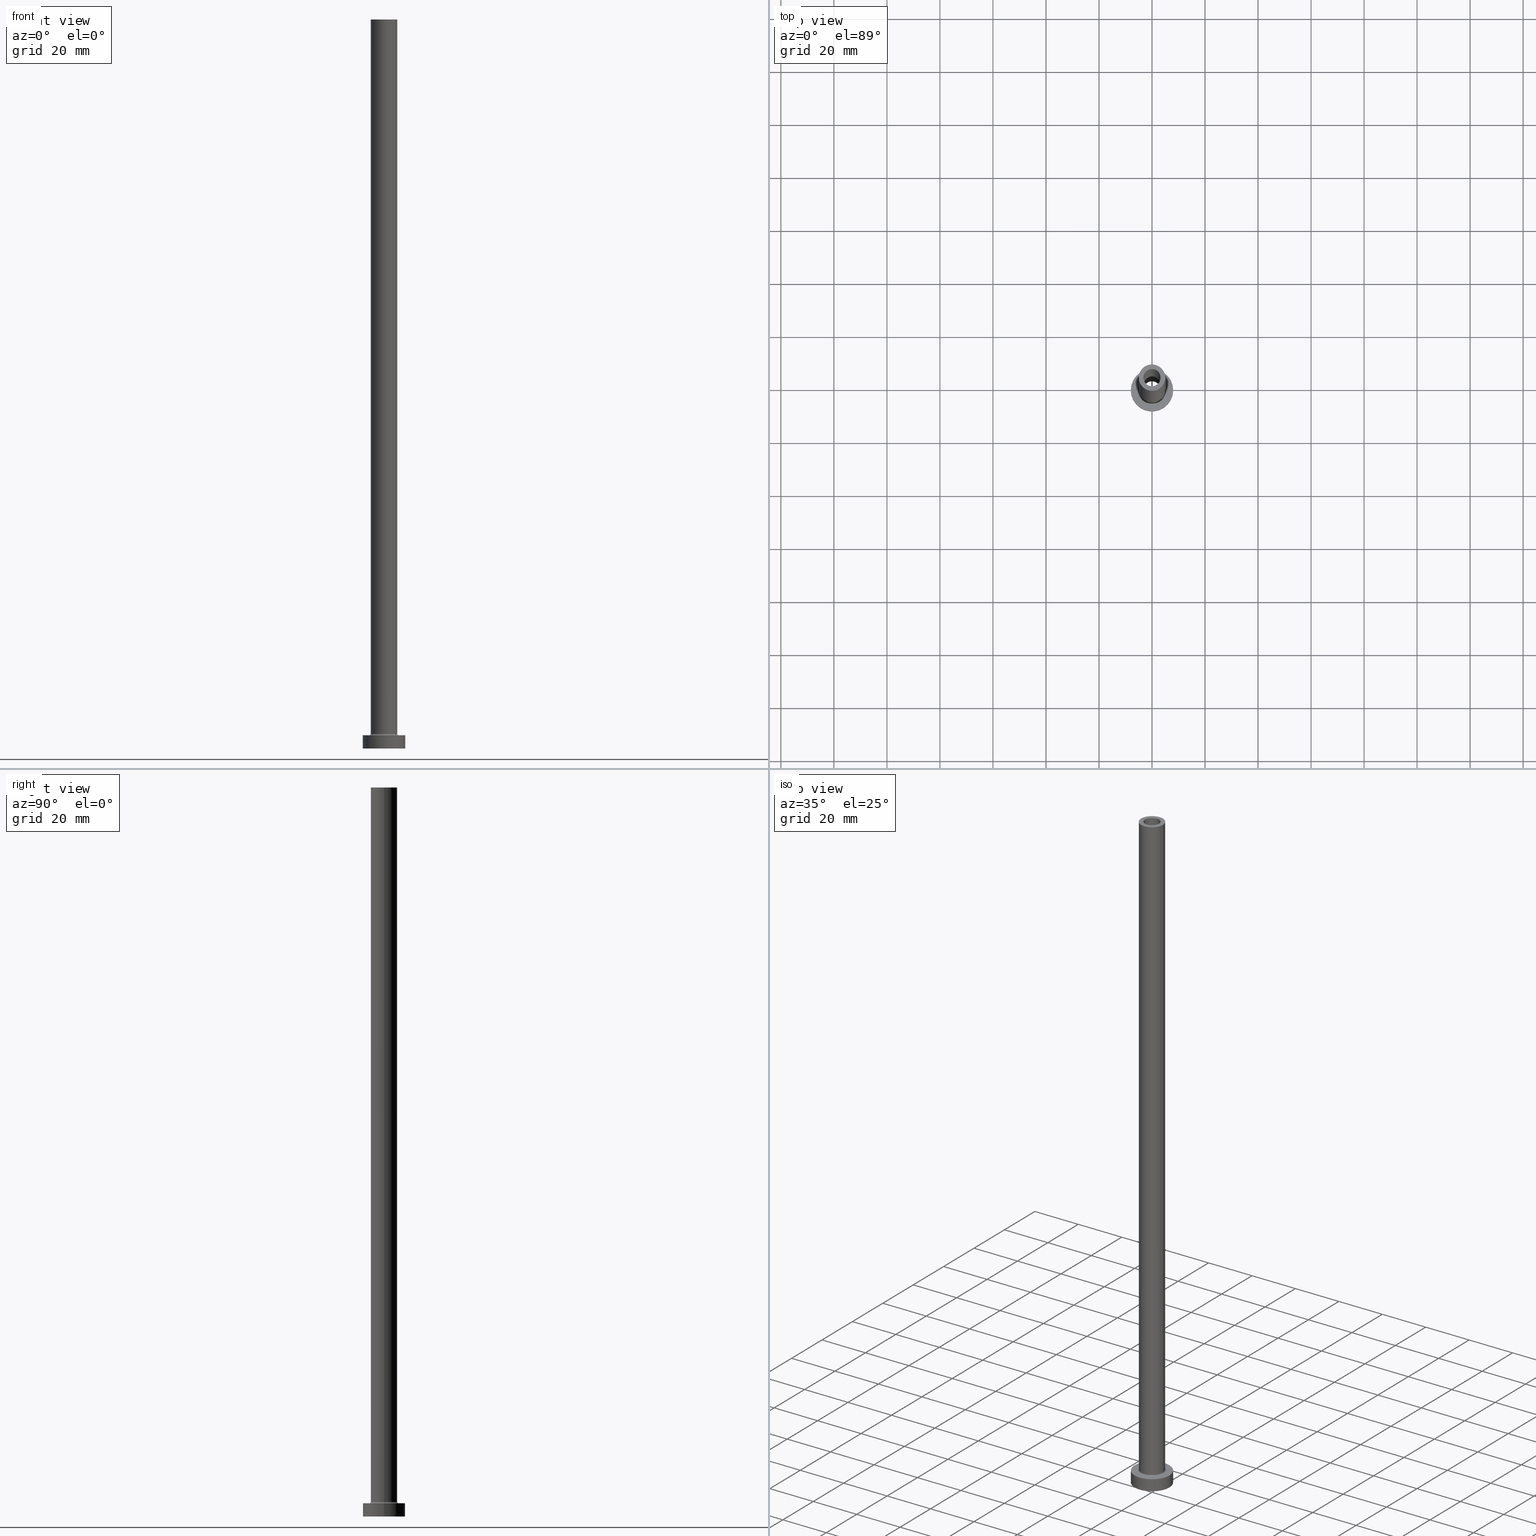
[diagram: canonical four-view strip — front | top / right | iso, engineering-drawing reading convention]
A machine part, canonical four-view strip (front | top / right | iso — engineering-drawing reading convention). The complete STEP part file that produces these views, byte-faithful:
ISO-10303-21;
HEADER;
FILE_DESCRIPTION (( 'STEP AP203' ),
    '1' );
FILE_NAME ('f0b0.STEP',
    '2023-02-13T14:01:54',
    ( '' ),
    ( '' ),
    'SwSTEP 2.0',
    'SolidWorks 2019',
    '' );
FILE_SCHEMA (( 'CONFIG_CONTROL_DESIGN' ));
ENDSEC;

DATA;
#1 = EDGE_CURVE ( 'NONE', #441, #51, #213, .T. ) ;
#2 = ADVANCED_FACE ( 'NONE', ( #30, #246 ), #245, .T. ) ;
#3 = CARTESIAN_POINT ( 'NONE',  ( 0.000000000000000000, 0.000000000000000000, 275.0000000000000000 ) ) ;
#4 = EDGE_CURVE ( 'NONE', #93, #163, #5, .T. ) ;
#5 = CIRCLE ( 'NONE', #270, 8.000000000000000000 ) ;
#6 = DIRECTION ( 'NONE',  ( 0.000000000000000000, 0.000000000000000000, 1.000000000000000000 ) ) ;
#7 = VECTOR ( 'NONE', #149, 1000.000000000000000 ) ;
#8 = CC_DESIGN_PERSON_AND_ORGANIZATION_ASSIGNMENT ( #165, #346, ( #154 ) ) ;
#9 = LINE ( 'NONE', #432, #456 ) ;
#10 = CARTESIAN_POINT ( 'NONE',  ( 5.500000000000000000, 0.000000000000000000, 5.500000000000005329 ) ) ;
#11 = EDGE_LOOP ( 'NONE', ( #380, #348, #15, #338 ) ) ;
#12 = EDGE_CURVE ( 'NONE', #19, #141, #64, .T. ) ;
#13 = DIRECTION ( 'NONE',  ( -0.000000000000000000, -0.000000000000000000, -1.000000000000000000 ) ) ;
#14 = CIRCLE ( 'NONE', #114, 3.399999999999999911 ) ;
#15 = ORIENTED_EDGE ( 'NONE', *, *, #352, .T. ) ;
#16 = CARTESIAN_POINT ( 'NONE',  ( 0.000000000000000000, 0.000000000000000000, 0.000000000000000000 ) ) ;
#17 = VERTEX_POINT ( 'NONE', #35 ) ;
#18 = DATE_TIME_ROLE ( 'classification_date' ) ;
#19 = VERTEX_POINT ( 'NONE', #100 ) ;
#20 = APPROVAL_DATE_TIME ( #375, #295 ) ;
#21 = AXIS2_PLACEMENT_3D ( 'NONE', #260, #264, #47 ) ;
#22 = ORIENTED_EDGE ( 'NONE', *, *, #162, .F. ) ;
#23 = DIRECTION ( 'NONE',  ( 0.000000000000000000, 0.000000000000000000, 1.000000000000000000 ) ) ;
#24 = DESIGN_CONTEXT ( 'detailed design', #146, 'design' ) ;
#25 = ORIENTED_EDGE ( 'NONE', *, *, #196, .F. ) ;
#26 = PERSON_AND_ORGANIZATION ( #99, #116 ) ;
#27 = LINE ( 'NONE', #215, #238 ) ;
#28 = DIRECTION ( 'NONE',  ( 1.000000000000000000, 0.000000000000000000, -0.000000000000000000 ) ) ;
#29 = VECTOR ( 'NONE', #142, 1000.000000000000000 ) ;
#30 = FACE_BOUND ( 'NONE', #42, .T. ) ;
#31 = DIRECTION ( 'NONE',  ( 0.000000000000000000, 0.000000000000000000, 1.000000000000000000 ) ) ;
#32 = CARTESIAN_POINT ( 'NONE',  ( -3.250000000000000444, 0.000000000000000000, 275.0000000000000000 ) ) ;
#33 = CALENDAR_DATE ( 2023, 13, 2 ) ;
#34 = LINE ( 'NONE', #174, #128 ) ;
#35 = CARTESIAN_POINT ( 'NONE',  ( 5.000000000000000000, 6.123233995736766282E-16, 5.500000000000005329 ) ) ;
#36 = FACE_BOUND ( 'NONE', #376, .T. ) ;
#37 = CIRCLE ( 'NONE', #73, 0.5000000000000004441 ) ;
#38 = DIRECTION ( 'NONE',  ( 0.000000000000000000, 0.000000000000000000, 1.000000000000000000 ) ) ;
#39 = DIRECTION ( 'NONE',  ( 1.000000000000000000, 0.000000000000000000, 0.000000000000000000 ) ) ;
#40 = DIRECTION ( 'NONE',  ( -1.000000000000000000, 0.000000000000000000, 0.000000000000000000 ) ) ;
#41 = PRODUCT_DEFINITION ( 'NEZN�M�', '', #154, #24 ) ;
#42 = EDGE_LOOP ( 'NONE', ( #340, #236 ) ) ;
#43 = DIRECTION ( 'NONE',  ( 0.000000000000000000, 0.000000000000000000, -1.000000000000000000 ) ) ;
#44 = CIRCLE ( 'NONE', #65, 3.399999999999999911 ) ;
#45 = DIRECTION ( 'NONE',  ( -0.000000000000000000, -0.000000000000000000, -1.000000000000000000 ) ) ;
#46 = EDGE_CURVE ( 'NONE', #394, #19, #27, .T. ) ;
#47 = DIRECTION ( 'NONE',  ( 1.000000000000000000, 0.000000000000000000, 0.000000000000000000 ) ) ;
#48 = ORIENTED_EDGE ( 'NONE', *, *, #254, .F. ) ;
#49 = PERSON_AND_ORGANIZATION ( #99, #116 ) ;
#50 = ADVANCED_BREP_SHAPE_REPRESENTATION ( 'f0b0', ( #137, #230 ), #159 ) ;
#51 = VERTEX_POINT ( 'NONE', #138 ) ;
#52 = PERSON_AND_ORGANIZATION ( #99, #116 ) ;
#53 = EDGE_CURVE ( 'NONE', #141, #19, #278, .T. ) ;
#54 = ORIENTED_EDGE ( 'NONE', *, *, #188, .T. ) ;
#55 = ORIENTED_EDGE ( 'NONE', *, *, #342, .F. ) ;
#56 = APPROVAL_ROLE ( '' ) ;
#57 = AXIS2_PLACEMENT_3D ( 'NONE', #252, #415, #67 ) ;
#58 = AXIS2_PLACEMENT_3D ( 'NONE', #332, #6, #39 ) ;
#59 = ORIENTED_EDGE ( 'NONE', *, *, #46, .T. ) ;
#60 = DIRECTION ( 'NONE',  ( 0.000000000000000000, 0.000000000000000000, 1.000000000000000000 ) ) ;
#61 = EDGE_LOOP ( 'NONE', ( #22, #202, #169, #300 ) ) ;
#62 = LINE ( 'NONE', #32, #158 ) ;
#63 = CARTESIAN_POINT ( 'NONE',  ( 0.000000000000000000, 0.000000000000000000, 0.000000000000000000 ) ) ;
#64 = CIRCLE ( 'NONE', #199, 3.250000000000000444 ) ;
#65 = AXIS2_PLACEMENT_3D ( 'NONE', #72, #144, #392 ) ;
#66 = AXIS2_PLACEMENT_3D ( 'NONE', #323, #450, #326 ) ;
#67 = DIRECTION ( 'NONE',  ( 1.000000000000000000, 0.000000000000000000, 0.000000000000000000 ) ) ;
#68 = CARTESIAN_POINT ( 'NONE',  ( 0.000000000000000000, 0.000000000000000000, 239.6166522241370842 ) ) ;
#69 = CARTESIAN_POINT ( 'NONE',  ( 5.000000000000000000, 6.123233995736766282E-16, 275.0000000000000000 ) ) ;
#70 = CARTESIAN_POINT ( 'NONE',  ( -3.250000000000000444, 0.000000000000000000, 230.0000000000000284 ) ) ;
#71 = ORIENTED_EDGE ( 'NONE', *, *, #240, .F. ) ;
#72 = CARTESIAN_POINT ( 'NONE',  ( 0.000000000000000000, 0.000000000000000000, 0.000000000000000000 ) ) ;
#73 = AXIS2_PLACEMENT_3D ( 'NONE', #139, #359, #461 ) ;
#74 = DIRECTION ( 'NONE',  ( 0.000000000000000000, 0.000000000000000000, 1.000000000000000000 ) ) ;
#75 = EDGE_CURVE ( 'NONE', #109, #141, #62, .T. ) ;
#76 = DIRECTION ( 'NONE',  ( 0.000000000000000000, -1.000000000000000000, 0.000000000000000000 ) ) ;
#77 = DIRECTION ( 'NONE',  ( 1.000000000000000000, 0.000000000000000000, 0.000000000000000000 ) ) ;
#78 = ORIENTED_EDGE ( 'NONE', *, *, #75, .T. ) ;
#79 = CARTESIAN_POINT ( 'NONE',  ( -3.399999999999999911, 0.000000000000000000, 0.000000000000000000 ) ) ;
#80 = AXIS2_PLACEMENT_3D ( 'NONE', #189, #153, #398 ) ;
#81 = CC_DESIGN_PERSON_AND_ORGANIZATION_ASSIGNMENT ( #308, #442, ( #154 ) ) ;
#82 = DIRECTION ( 'NONE',  ( -1.000000000000000000, 0.000000000000000000, 0.000000000000000000 ) ) ;
#83 = VERTEX_POINT ( 'NONE', #69 ) ;
#84 = DIRECTION ( 'NONE',  ( 1.000000000000000000, 0.000000000000000000, 0.000000000000000000 ) ) ;
#85 = ADVANCED_FACE ( 'NONE', ( #453 ), #280, .T. ) ;
#86 = PRODUCT ( 'f0b0', 'f0b0', '', ( #235 ) ) ;
#87 = ADVANCED_FACE ( 'NONE', ( #107 ), #284, .F. ) ;
#88 = VERTEX_POINT ( 'NONE', #209 ) ;
#89 = COORDINATED_UNIVERSAL_TIME_OFFSET ( 1, 0, .AHEAD. ) ;
#90 = AXIS2_PLACEMENT_3D ( 'NONE', #385, #38, #220 ) ;
#91 = CC_DESIGN_APPROVAL ( #295, ( #154 ) ) ;
#92 = CC_DESIGN_PERSON_AND_ORGANIZATION_ASSIGNMENT ( #301, #444, ( #41 ) ) ;
#93 = VERTEX_POINT ( 'NONE', #353 ) ;
#94 = VERTEX_POINT ( 'NONE', #350 ) ;
#95 = DATE_AND_TIME ( #127, #440 ) ;
#96 = ORIENTED_EDGE ( 'NONE', *, *, #140, .F. ) ;
#97 = CC_DESIGN_PERSON_AND_ORGANIZATION_ASSIGNMENT ( #49, #341, ( #86 ) ) ;
#98 = CIRCLE ( 'NONE', #58, 5.000000000000000000 ) ;
#99 = PERSON ( 'NEUR�EN�', 'NEUR�EN�', 'NEUR�EN�', ('NEUR�EN�'), ('NEUR�EN�'), ('NEUR�EN�') ) ;
#100 = CARTESIAN_POINT ( 'NONE',  ( 3.250000000000000444, 3.980102097228897245E-16, 230.0000000000000284 ) ) ;
#101 = ORIENTED_EDGE ( 'NONE', *, *, #140, .T. ) ;
#102 = CARTESIAN_POINT ( 'NONE',  ( 0.000000000000000000, 0.000000000000000000, 230.0000000000000284 ) ) ;
#103 = CARTESIAN_POINT ( 'NONE',  ( 0.000000000000000000, 0.000000000000000000, 5.000000000000000000 ) ) ;
#104 = CYLINDRICAL_SURFACE ( 'NONE', #315, 3.399999999999999911 ) ;
#105 = CLOSED_SHELL ( 'NONE', ( #373, #87, #416, #302, #355, #404, #2, #279, #85, #184, #364, #224, #211, #228 ) ) ;
#106 = AXIS2_PLACEMENT_3D ( 'NONE', #255, #186, #281 ) ;
#107 = FACE_OUTER_BOUND ( 'NONE', #164, .T. ) ;
#108 = PLANE ( 'NONE',  #368 ) ;
#109 = VERTEX_POINT ( 'NONE', #173 ) ;
#110 = LINE ( 'NONE', #223, #214 ) ;
#111 = CARTESIAN_POINT ( 'NONE',  ( -5.000000000000000000, 0.000000000000000000, 275.0000000000000000 ) ) ;
#112 = PRODUCT_DEFINITION_SHAPE ( 'NONE', 'NONE',  #41 ) ;
#113 = PRODUCT_RELATED_PRODUCT_CATEGORY ( 'detail', '', ( #86 ) ) ;
#114 = AXIS2_PLACEMENT_3D ( 'NONE', #390, #181, #232 ) ;
#115 = FACE_BOUND ( 'NONE', #204, .T. ) ;
#116 = ORGANIZATION ( 'NEUR�EN�', 'NEUR�EN�', '' ) ;
#117 = FACE_OUTER_BOUND ( 'NONE', #272, .T. ) ;
#118 = CARTESIAN_POINT ( 'NONE',  ( 3.250000000000000444, 3.980102097228897245E-16, 275.0000000000000000 ) ) ;
#119 = CARTESIAN_POINT ( 'NONE',  ( 0.000000000000000000, 0.000000000000000000, 275.0000000000000000 ) ) ;
#120 = TOROIDAL_SURFACE ( 'NONE', #434, 5.500000000000000000, 0.5000000000000000000 ) ;
#121 = VERTEX_POINT ( 'NONE', #393 ) ;
#122 = LINE ( 'NONE', #157, #257 ) ;
#123 = EDGE_LOOP ( 'NONE', ( #71, #261, #126, #130 ) ) ;
#124 = PERSON_AND_ORGANIZATION ( #99, #116 ) ;
#125 = EDGE_CURVE ( 'NONE', #274, #413, #44, .T. ) ;
#126 = ORIENTED_EDGE ( 'NONE', *, *, #196, .T. ) ;
#127 = CALENDAR_DATE ( 2023, 13, 2 ) ;
#128 = VECTOR ( 'NONE', #314, 1000.000000000000000 ) ;
#129 = APPROVAL_PERSON_ORGANIZATION ( #358, #347, #387 ) ;
#130 = ORIENTED_EDGE ( 'NONE', *, *, #389, .T. ) ;
#131 = SECURITY_CLASSIFICATION_LEVEL ( 'unclassified' ) ;
#132 = EDGE_LOOP ( 'NONE', ( #409, #96, #191, #371 ) ) ;
#133 = COORDINATED_UNIVERSAL_TIME_OFFSET ( 1, 0, .AHEAD. ) ;
#134 = EDGE_CURVE ( 'NONE', #441, #274, #110, .T. ) ;
#135 = EDGE_LOOP ( 'NONE', ( #190, #241 ) ) ;
#136 = DIRECTION ( 'NONE',  ( 1.000000000000000000, 0.000000000000000000, 0.000000000000000000 ) ) ;
#137 = MANIFOLD_SOLID_BREP ( 'Odebrat vysunut�m4', #105 ) ;
#138 = CARTESIAN_POINT ( 'NONE',  ( 3.399999999999999911, 4.163799117101000559E-16, 230.0000000000000284 ) ) ;
#139 = CARTESIAN_POINT ( 'NONE',  ( -5.500000000000000000, 6.735557395310442023E-16, 5.500000000000005329 ) ) ;
#140 = EDGE_CURVE ( 'NONE', #17, #208, #414, .T. ) ;
#141 = VERTEX_POINT ( 'NONE', #70 ) ;
#142 = DIRECTION ( 'NONE',  ( 0.000000000000000000, 0.000000000000000000, -1.000000000000000000 ) ) ;
#143 = CARTESIAN_POINT ( 'NONE',  ( 0.000000000000000000, 0.000000000000000000, 275.0000000000000000 ) ) ;
#144 = DIRECTION ( 'NONE',  ( -0.000000000000000000, -0.000000000000000000, -1.000000000000000000 ) ) ;
#145 = AXIS2_PLACEMENT_3D ( 'NONE', #422, #419, #28 ) ;
#146 = APPLICATION_CONTEXT ( 'configuration controlled 3d designs of mechanical parts and assemblies' ) ;
#147 = APPROVAL_PERSON_ORGANIZATION ( #26, #420, #56 ) ;
#148 = DIRECTION ( 'NONE',  ( 1.000000000000000000, 0.000000000000000000, -0.000000000000000000 ) ) ;
#149 = DIRECTION ( 'NONE',  ( -0.000000000000000000, -0.000000000000000000, -1.000000000000000000 ) ) ;
#150 = EDGE_CURVE ( 'NONE', #51, #413, #454, .T. ) ;
#151 = CARTESIAN_POINT ( 'NONE',  ( 0.000000000000000000, 0.000000000000000000, 5.500000000000005329 ) ) ;
#152 = CIRCLE ( 'NONE', #21, 5.500000000000000000 ) ;
#153 = DIRECTION ( 'NONE',  ( 0.000000000000000000, 0.000000000000000000, 1.000000000000000000 ) ) ;
#154 = PRODUCT_DEFINITION_FORMATION_WITH_SPECIFIED_SOURCE ( 'LIBOVOLN�', '', #86, .NOT_KNOWN. ) ;
#155 = DIRECTION ( 'NONE',  ( -1.000000000000000000, 0.000000000000000000, 0.000000000000000000 ) ) ;
#156 = CARTESIAN_POINT ( 'NONE',  ( -5.500000000000000000, 6.735557395310442023E-16, 5.000000000000002665 ) ) ;
#157 = CARTESIAN_POINT ( 'NONE',  ( -8.000000000000000000, 0.000000000000000000, 5.000000000000000000 ) ) ;
#158 = VECTOR ( 'NONE', #319, 1000.000000000000000 ) ;
#159 =( GEOMETRIC_REPRESENTATION_CONTEXT ( 3 ) GLOBAL_UNCERTAINTY_ASSIGNED_CONTEXT ( ( #275 ) ) GLOBAL_UNIT_ASSIGNED_CONTEXT ( ( #344, #446, #438 ) ) REPRESENTATION_CONTEXT ( 'NONE', 'WORKASPACE' ) );
#160 = EDGE_LOOP ( 'NONE', ( #311, #374, #78, #288 ) ) ;
#161 = CARTESIAN_POINT ( 'NONE',  ( -3.399999999999999911, 0.000000000000000000, 230.0000000000000284 ) ) ;
#162 = EDGE_CURVE ( 'NONE', #163, #93, #396, .T. ) ;
#163 = VERTEX_POINT ( 'NONE', #253 ) ;
#164 = EDGE_LOOP ( 'NONE', ( #320, #309, #276, #445 ) ) ;
#165 = PERSON_AND_ORGANIZATION ( #99, #116 ) ;
#166 = CIRCLE ( 'NONE', #206, 8.000000000000000000 ) ;
#167 = CIRCLE ( 'NONE', #356, 3.250000000000000444 ) ;
#168 = CC_DESIGN_DATE_AND_TIME_ASSIGNMENT ( #95, #312, ( #41 ) ) ;
#169 = ORIENTED_EDGE ( 'NONE', *, *, #318, .T. ) ;
#170 = APPLICATION_PROTOCOL_DEFINITION ( 'international standard', 'config_control_design', 1994, #146 ) ;
#171 = ORIENTED_EDGE ( 'NONE', *, *, #259, .F. ) ;
#172 = APPROVAL_DATE_TIME ( #203, #420 ) ;
#173 = CARTESIAN_POINT ( 'NONE',  ( -3.250000000000000444, 0.000000000000000000, 275.0000000000000000 ) ) ;
#174 = CARTESIAN_POINT ( 'NONE',  ( 5.000000000000000000, 6.123233995736766282E-16, 275.0000000000000000 ) ) ;
#175 = AXIS2_PLACEMENT_3D ( 'NONE', #366, #45, #40 ) ;
#176 = ORIENTED_EDGE ( 'NONE', *, *, #389, .F. ) ;
#177 = COORDINATED_UNIVERSAL_TIME_OFFSET ( 1, 0, .AHEAD. ) ;
#178 = DIRECTION ( 'NONE',  ( 1.000000000000000000, 0.000000000000000000, 0.000000000000000000 ) ) ;
#179 = EDGE_CURVE ( 'NONE', #208, #402, #37, .T. ) ;
#180 = DIRECTION ( 'NONE',  ( 0.000000000000000000, 0.000000000000000000, 1.000000000000000000 ) ) ;
#181 = DIRECTION ( 'NONE',  ( -0.000000000000000000, -0.000000000000000000, -1.000000000000000000 ) ) ;
#182 = CARTESIAN_POINT ( 'NONE',  ( 0.000000000000000000, 0.000000000000000000, 230.0000000000000284 ) ) ;
#183 = DIRECTION ( 'NONE',  ( -1.000000000000000000, 0.000000000000000000, 0.000000000000000000 ) ) ;
#184 = ADVANCED_FACE ( 'NONE', ( #425, #317 ), #362, .T. ) ;
#185 = CIRCLE ( 'NONE', #424, 5.500000000000000000 ) ;
#186 = DIRECTION ( 'NONE',  ( 0.000000000000000000, 0.000000000000000000, 1.000000000000000000 ) ) ;
#187 = CYLINDRICAL_SURFACE ( 'NONE', #379, 8.000000000000000000 ) ;
#188 = EDGE_CURVE ( 'NONE', #88, #83, #306, .T. ) ;
#189 = CARTESIAN_POINT ( 'NONE',  ( 0.000000000000000000, 0.000000000000000000, 5.500000000000005329 ) ) ;
#190 = ORIENTED_EDGE ( 'NONE', *, *, #1, .F. ) ;
#191 = ORIENTED_EDGE ( 'NONE', *, *, #337, .T. ) ;
#192 = CIRCLE ( 'NONE', #447, 0.5000000000000004441 ) ;
#193 = SECURITY_CLASSIFICATION ( '', '', #131 ) ;
#194 = DIRECTION ( 'NONE',  ( 0.000000000000000000, 0.000000000000000000, 1.000000000000000000 ) ) ;
#195 = CYLINDRICAL_SURFACE ( 'NONE', #263, 3.250000000000000444 ) ;
#196 = EDGE_CURVE ( 'NONE', #88, #208, #361, .T. ) ;
#197 = EDGE_LOOP ( 'NONE', ( #54, #399 ) ) ;
#198 = COORDINATED_UNIVERSAL_TIME_OFFSET ( 1, 0, .AHEAD. ) ;
#199 = AXIS2_PLACEMENT_3D ( 'NONE', #316, #313, #448 ) ;
#200 = ORIENTED_EDGE ( 'NONE', *, *, #233, .T. ) ;
#201 = CALENDAR_DATE ( 2023, 13, 2 ) ;
#202 = ORIENTED_EDGE ( 'NONE', *, *, #383, .T. ) ;
#203 = DATE_AND_TIME ( #349, #330 ) ;
#204 = EDGE_LOOP ( 'NONE', ( #345, #171 ) ) ;
#205 = COORDINATED_UNIVERSAL_TIME_OFFSET ( 1, 0, .AHEAD. ) ;
#206 = AXIS2_PLACEMENT_3D ( 'NONE', #63, #452, #212 ) ;
#207 = LOCAL_TIME ( 15, 1, 54.00000000000000000, #205 ) ;
#208 = VERTEX_POINT ( 'NONE', #289 ) ;
#209 = CARTESIAN_POINT ( 'NONE',  ( -5.000000000000000000, 0.000000000000000000, 275.0000000000000000 ) ) ;
#210 = DIRECTION ( 'NONE',  ( -0.000000000000000000, -0.000000000000000000, -1.000000000000000000 ) ) ;
#211 = ADVANCED_FACE ( 'NONE', ( #36, #285 ), #108, .F. ) ;
#212 = DIRECTION ( 'NONE',  ( 1.000000000000000000, 0.000000000000000000, 0.000000000000000000 ) ) ;
#213 = CIRCLE ( 'NONE', #57, 3.399999999999999911 ) ;
#214 = VECTOR ( 'NONE', #321, 1000.000000000000000 ) ;
#215 = CARTESIAN_POINT ( 'NONE',  ( 3.250000000000000444, 3.980102097228897245E-16, 275.0000000000000000 ) ) ;
#216 = DATE_AND_TIME ( #33, #458 ) ;
#217 = FACE_OUTER_BOUND ( 'NONE', #218, .T. ) ;
#218 = EDGE_LOOP ( 'NONE', ( #436, #200, #343, #234 ) ) ;
#219 = DIRECTION ( 'NONE',  ( 0.000000000000000000, 0.000000000000000000, -1.000000000000000000 ) ) ;
#220 = DIRECTION ( 'NONE',  ( 1.000000000000000000, 0.000000000000000000, 0.000000000000000000 ) ) ;
#221 = CIRCLE ( 'NONE', #229, 5.000000000000000000 ) ;
#222 = CC_DESIGN_APPROVAL ( #420, ( #41 ) ) ;
#223 = CARTESIAN_POINT ( 'NONE',  ( -3.399999999999999911, 0.000000000000000000, 239.6166522241370842 ) ) ;
#224 = ADVANCED_FACE ( 'NONE', ( #217 ), #104, .F. ) ;
#225 = EDGE_CURVE ( 'NONE', #443, #121, #166, .T. ) ;
#226 = DIRECTION ( 'NONE',  ( 1.000000000000000000, 0.000000000000000000, 0.000000000000000000 ) ) ;
#227 = DIRECTION ( 'NONE',  ( 0.000000000000000000, 0.000000000000000000, 1.000000000000000000 ) ) ;
#228 = ADVANCED_FACE ( 'NONE', ( #428 ), #457, .F. ) ;
#229 = AXIS2_PLACEMENT_3D ( 'NONE', #354, #31, #178 ) ;
#230 = AXIS2_PLACEMENT_3D ( 'NONE', #16, #378, #136 ) ;
#231 = DIRECTION ( 'NONE',  ( -0.000000000000000000, -0.000000000000000000, -1.000000000000000000 ) ) ;
#232 = DIRECTION ( 'NONE',  ( 1.000000000000000000, 0.000000000000000000, 0.000000000000000000 ) ) ;
#233 = EDGE_CURVE ( 'NONE', #51, #441, #292, .T. ) ;
#234 = ORIENTED_EDGE ( 'NONE', *, *, #125, .T. ) ;
#235 = MECHANICAL_CONTEXT ( 'NONE', #335, 'mechanical' ) ;
#236 = ORIENTED_EDGE ( 'NONE', *, *, #303, .T. ) ;
#237 = CALENDAR_DATE ( 2023, 13, 2 ) ;
#238 = VECTOR ( 'NONE', #357, 1000.000000000000000 ) ;
#239 = ORIENTED_EDGE ( 'NONE', *, *, #342, .T. ) ;
#240 = EDGE_CURVE ( 'NONE', #83, #17, #34, .T. ) ;
#241 = ORIENTED_EDGE ( 'NONE', *, *, #233, .F. ) ;
#242 = ORIENTED_EDGE ( 'NONE', *, *, #269, .F. ) ;
#243 = APPROVAL_STATUS ( 'not_yet_approved' ) ;
#244 = AXIS2_PLACEMENT_3D ( 'NONE', #417, #322, #382 ) ;
#245 = PLANE ( 'NONE',  #324 ) ;
#246 = FACE_OUTER_BOUND ( 'NONE', #459, .T. ) ;
#247 = CARTESIAN_POINT ( 'NONE',  ( 3.399999999999999911, 4.163799117101000559E-16, 239.6166522241370842 ) ) ;
#248 = DIRECTION ( 'NONE',  ( 0.000000000000000000, 0.000000000000000000, 1.000000000000000000 ) ) ;
#249 = SHAPE_DEFINITION_REPRESENTATION ( #112, #50 ) ;
#250 = DIRECTION ( 'NONE',  ( 1.000000000000000000, 0.000000000000000000, 0.000000000000000000 ) ) ;
#251 = AXIS2_PLACEMENT_3D ( 'NONE', #119, #291, #226 ) ;
#252 = CARTESIAN_POINT ( 'NONE',  ( 0.000000000000000000, 0.000000000000000000, 230.0000000000000284 ) ) ;
#253 = CARTESIAN_POINT ( 'NONE',  ( 8.000000000000000000, 9.797174393178825657E-16, 5.000000000000000000 ) ) ;
#254 = EDGE_CURVE ( 'NONE', #83, #88, #221, .T. ) ;
#255 = CARTESIAN_POINT ( 'NONE',  ( 0.000000000000000000, 0.000000000000000000, 275.0000000000000000 ) ) ;
#256 = CARTESIAN_POINT ( 'NONE',  ( 0.000000000000000000, 0.000000000000000000, 275.0000000000000000 ) ) ;
#257 = VECTOR ( 'NONE', #231, 1000.000000000000000 ) ;
#258 = CARTESIAN_POINT ( 'NONE',  ( 0.000000000000000000, 0.000000000000000000, 0.000000000000000000 ) ) ;
#259 = EDGE_CURVE ( 'NONE', #413, #274, #14, .T. ) ;
#260 = CARTESIAN_POINT ( 'NONE',  ( 0.000000000000000000, 0.000000000000000000, 5.000000000000000000 ) ) ;
#261 = ORIENTED_EDGE ( 'NONE', *, *, #188, .F. ) ;
#262 = DIRECTION ( 'NONE',  ( -0.000000000000000000, -0.000000000000000000, -1.000000000000000000 ) ) ;
#263 = AXIS2_PLACEMENT_3D ( 'NONE', #429, #43, #155 ) ;
#264 = DIRECTION ( 'NONE',  ( -0.000000000000000000, -0.000000000000000000, -1.000000000000000000 ) ) ;
#265 = ORIENTED_EDGE ( 'NONE', *, *, #53, .T. ) ;
#266 = PLANE ( 'NONE',  #336 ) ;
#267 = ORIENTED_EDGE ( 'NONE', *, *, #179, .T. ) ;
#268 = APPROVAL_STATUS ( 'not_yet_approved' ) ;
#269 = EDGE_CURVE ( 'NONE', #94, #402, #185, .T. ) ;
#270 = AXIS2_PLACEMENT_3D ( 'NONE', #282, #248, #386 ) ;
#271 = AXIS2_PLACEMENT_3D ( 'NONE', #426, #74, #250 ) ;
#272 = EDGE_LOOP ( 'NONE', ( #48, #290, #101, #25 ) ) ;
#273 = DIRECTION ( 'NONE',  ( 1.000000000000000000, 0.000000000000000000, 0.000000000000000000 ) ) ;
#274 = VERTEX_POINT ( 'NONE', #79 ) ;
#275 = UNCERTAINTY_MEASURE_WITH_UNIT (LENGTH_MEASURE( 1.000000000000000082E-05 ), #344, 'distance_accuracy_value', 'NONE');
#276 = ORIENTED_EDGE ( 'NONE', *, *, #259, .T. ) ;
#277 = ORIENTED_EDGE ( 'NONE', *, *, #4, .T. ) ;
#278 = CIRCLE ( 'NONE', #372, 3.250000000000000444 ) ;
#279 = ADVANCED_FACE ( 'NONE', ( #115, #369 ), #266, .F. ) ;
#280 = CYLINDRICAL_SURFACE ( 'NONE', #363, 5.000000000000000000 ) ;
#281 = DIRECTION ( 'NONE',  ( 1.000000000000000000, 0.000000000000000000, 0.000000000000000000 ) ) ;
#282 = CARTESIAN_POINT ( 'NONE',  ( 0.000000000000000000, 0.000000000000000000, 5.000000000000000000 ) ) ;
#283 = DIRECTION ( 'NONE',  ( 0.000000000000000000, 0.000000000000000000, 1.000000000000000000 ) ) ;
#284 = CYLINDRICAL_SURFACE ( 'NONE', #244, 3.399999999999999911 ) ;
#285 = FACE_OUTER_BOUND ( 'NONE', #135, .T. ) ;
#286 = TOROIDAL_SURFACE ( 'NONE', #80, 5.500000000000000000, 0.5000000000000000000 ) ;
#287 = DIRECTION ( 'NONE',  ( 0.000000000000000000, 0.000000000000000000, -1.000000000000000000 ) ) ;
#288 = ORIENTED_EDGE ( 'NONE', *, *, #12, .F. ) ;
#289 = CARTESIAN_POINT ( 'NONE',  ( -5.000000000000000000, 0.000000000000000000, 5.500000000000005329 ) ) ;
#290 = ORIENTED_EDGE ( 'NONE', *, *, #240, .T. ) ;
#291 = DIRECTION ( 'NONE',  ( 0.000000000000000000, 0.000000000000000000, 1.000000000000000000 ) ) ;
#292 = CIRCLE ( 'NONE', #271, 3.399999999999999911 ) ;
#293 = CARTESIAN_POINT ( 'NONE',  ( 0.000000000000000000, 0.000000000000000000, 5.000000000000000000 ) ) ;
#294 = CYLINDRICAL_SURFACE ( 'NONE', #175, 8.000000000000000000 ) ;
#295 = APPROVAL ( #268, 'NEUR�EN�' ) ;
#296 = CARTESIAN_POINT ( 'NONE',  ( 3.399999999999999911, 4.163799117101000559E-16, 0.000000000000000000 ) ) ;
#297 = ORIENTED_EDGE ( 'NONE', *, *, #75, .F. ) ;
#298 = AXIS2_PLACEMENT_3D ( 'NONE', #333, #194, #77 ) ;
#299 = DIRECTION ( 'NONE',  ( -0.000000000000000000, -0.000000000000000000, -1.000000000000000000 ) ) ;
#300 = ORIENTED_EDGE ( 'NONE', *, *, #352, .F. ) ;
#301 = PERSON_AND_ORGANIZATION ( #99, #116 ) ;
#302 = ADVANCED_FACE ( 'NONE', ( #117 ), #397, .T. ) ;
#303 = EDGE_CURVE ( 'NONE', #402, #94, #152, .T. ) ;
#304 = ORIENTED_EDGE ( 'NONE', *, *, #53, .F. ) ;
#305 = PERSON_AND_ORGANIZATION_ROLE ( 'classification_officer' ) ;
#306 = CIRCLE ( 'NONE', #106, 5.000000000000000000 ) ;
#307 = EDGE_LOOP ( 'NONE', ( #176, #267, #242, #411 ) ) ;
#308 = PERSON_AND_ORGANIZATION ( #99, #116 ) ;
#309 = ORIENTED_EDGE ( 'NONE', *, *, #150, .T. ) ;
#310 = APPLICATION_PROTOCOL_DEFINITION ( 'international standard', 'config_control_design', 1994, #335 ) ;
#311 = ORIENTED_EDGE ( 'NONE', *, *, #46, .F. ) ;
#312 = DATE_TIME_ROLE ( 'creation_date' ) ;
#313 = DIRECTION ( 'NONE',  ( 0.000000000000000000, 0.000000000000000000, 1.000000000000000000 ) ) ;
#314 = DIRECTION ( 'NONE',  ( -0.000000000000000000, -0.000000000000000000, -1.000000000000000000 ) ) ;
#315 = AXIS2_PLACEMENT_3D ( 'NONE', #68, #219, #183 ) ;
#316 = CARTESIAN_POINT ( 'NONE',  ( 0.000000000000000000, 0.000000000000000000, 230.0000000000000284 ) ) ;
#317 = FACE_OUTER_BOUND ( 'NONE', #197, .T. ) ;
#318 = EDGE_CURVE ( 'NONE', #121, #443, #407, .T. ) ;
#319 = DIRECTION ( 'NONE',  ( 0.000000000000000000, 0.000000000000000000, -1.000000000000000000 ) ) ;
#320 = ORIENTED_EDGE ( 'NONE', *, *, #1, .T. ) ;
#321 = DIRECTION ( 'NONE',  ( 0.000000000000000000, 0.000000000000000000, -1.000000000000000000 ) ) ;
#322 = DIRECTION ( 'NONE',  ( 0.000000000000000000, 0.000000000000000000, -1.000000000000000000 ) ) ;
#323 = CARTESIAN_POINT ( 'NONE',  ( 0.000000000000000000, 0.000000000000000000, 5.500000000000005329 ) ) ;
#324 = AXIS2_PLACEMENT_3D ( 'NONE', #103, #180, #391 ) ;
#325 = ORIENTED_EDGE ( 'NONE', *, *, #430, .F. ) ;
#326 = DIRECTION ( 'NONE',  ( 1.000000000000000000, 0.000000000000000000, 0.000000000000000000 ) ) ;
#327 = CARTESIAN_POINT ( 'NONE',  ( 0.000000000000000000, 0.000000000000000000, 5.000000000000000000 ) ) ;
#328 = DIRECTION ( 'NONE',  ( -0.000000000000000000, -0.000000000000000000, -1.000000000000000000 ) ) ;
#329 = AXIS2_PLACEMENT_3D ( 'NONE', #256, #287, #395 ) ;
#330 = LOCAL_TIME ( 15, 1, 54.00000000000000000, #198 ) ;
#331 = APPROVAL_PERSON_ORGANIZATION ( #124, #295, #406 ) ;
#332 = CARTESIAN_POINT ( 'NONE',  ( 0.000000000000000000, 0.000000000000000000, 5.500000000000005329 ) ) ;
#333 = CARTESIAN_POINT ( 'NONE',  ( 0.000000000000000000, 0.000000000000000000, 0.000000000000000000 ) ) ;
#334 = CARTESIAN_POINT ( 'NONE',  ( 0.000000000000000000, 0.000000000000000000, 275.0000000000000000 ) ) ;
#335 = APPLICATION_CONTEXT ( 'configuration controlled 3d designs of mechanical parts and assemblies' ) ;
#336 = AXIS2_PLACEMENT_3D ( 'NONE', #258, #227, #431 ) ;
#337 = EDGE_CURVE ( 'NONE', #17, #94, #192, .T. ) ;
#338 = ORIENTED_EDGE ( 'NONE', *, *, #225, .T. ) ;
#339 = CARTESIAN_POINT ( 'NONE',  ( -8.000000000000000000, 0.000000000000000000, 0.000000000000000000 ) ) ;
#340 = ORIENTED_EDGE ( 'NONE', *, *, #269, .T. ) ;
#341 = PERSON_AND_ORGANIZATION_ROLE ( 'design_owner' ) ;
#342 = EDGE_CURVE ( 'NONE', #109, #394, #439, .T. ) ;
#343 = ORIENTED_EDGE ( 'NONE', *, *, #134, .T. ) ;
#344 =( LENGTH_UNIT ( ) NAMED_UNIT ( * ) SI_UNIT ( .MILLI., .METRE. ) );
#345 = ORIENTED_EDGE ( 'NONE', *, *, #125, .F. ) ;
#346 = PERSON_AND_ORGANIZATION_ROLE ( 'creator' ) ;
#347 = APPROVAL ( #351, 'NEUR�EN�' ) ;
#348 = ORIENTED_EDGE ( 'NONE', *, *, #4, .F. ) ;
#349 = CALENDAR_DATE ( 2023, 13, 2 ) ;
#350 = CARTESIAN_POINT ( 'NONE',  ( 5.500000000000000000, 0.000000000000000000, 5.000000000000002665 ) ) ;
#351 = APPROVAL_STATUS ( 'not_yet_approved' ) ;
#352 = EDGE_CURVE ( 'NONE', #93, #443, #122, .T. ) ;
#353 = CARTESIAN_POINT ( 'NONE',  ( -8.000000000000000000, 0.000000000000000000, 5.000000000000000000 ) ) ;
#354 = CARTESIAN_POINT ( 'NONE',  ( 0.000000000000000000, 0.000000000000000000, 275.0000000000000000 ) ) ;
#355 = ADVANCED_FACE ( 'NONE', ( #365 ), #294, .T. ) ;
#356 = AXIS2_PLACEMENT_3D ( 'NONE', #3, #23, #273 ) ;
#357 = DIRECTION ( 'NONE',  ( 0.000000000000000000, 0.000000000000000000, -1.000000000000000000 ) ) ;
#358 = PERSON_AND_ORGANIZATION ( #99, #116 ) ;
#359 = DIRECTION ( 'NONE',  ( 1.224646799147353207E-16, 1.000000000000000000, -0.000000000000000000 ) ) ;
#360 = DIRECTION ( 'NONE',  ( -1.000000000000000000, 0.000000000000000000, 0.000000000000000000 ) ) ;
#361 = LINE ( 'NONE', #111, #7 ) ;
#362 = PLANE ( 'NONE',  #145 ) ;
#363 = AXIS2_PLACEMENT_3D ( 'NONE', #143, #210, #360 ) ;
#364 = ADVANCED_FACE ( 'NONE', ( #435 ), #286, .F. ) ;
#365 = FACE_OUTER_BOUND ( 'NONE', #61, .T. ) ;
#366 = CARTESIAN_POINT ( 'NONE',  ( 0.000000000000000000, 0.000000000000000000, 5.000000000000000000 ) ) ;
#367 = FACE_OUTER_BOUND ( 'NONE', #460, .T. ) ;
#368 = AXIS2_PLACEMENT_3D ( 'NONE', #102, #283, #148 ) ;
#369 = FACE_OUTER_BOUND ( 'NONE', #451, .T. ) ;
#370 = DIRECTION ( 'NONE',  ( 0.000000000000000000, 0.000000000000000000, -1.000000000000000000 ) ) ;
#371 = ORIENTED_EDGE ( 'NONE', *, *, #303, .F. ) ;
#372 = AXIS2_PLACEMENT_3D ( 'NONE', #182, #423, #384 ) ;
#373 = ADVANCED_FACE ( 'NONE', ( #367 ), #195, .F. ) ;
#374 = ORIENTED_EDGE ( 'NONE', *, *, #430, .T. ) ;
#375 = DATE_AND_TIME ( #237, #207 ) ;
#376 = EDGE_LOOP ( 'NONE', ( #265, #400 ) ) ;
#377 = ORIENTED_EDGE ( 'NONE', *, *, #318, .F. ) ;
#378 = DIRECTION ( 'NONE',  ( 0.000000000000000000, 0.000000000000000000, 1.000000000000000000 ) ) ;
#379 = AXIS2_PLACEMENT_3D ( 'NONE', #327, #262, #401 ) ;
#380 = ORIENTED_EDGE ( 'NONE', *, *, #383, .F. ) ;
#381 = CC_DESIGN_SECURITY_CLASSIFICATION ( #193, ( #154 ) ) ;
#382 = DIRECTION ( 'NONE',  ( -1.000000000000000000, 0.000000000000000000, 0.000000000000000000 ) ) ;
#383 = EDGE_CURVE ( 'NONE', #163, #121, #9, .T. ) ;
#384 = DIRECTION ( 'NONE',  ( 1.000000000000000000, 0.000000000000000000, 0.000000000000000000 ) ) ;
#385 = CARTESIAN_POINT ( 'NONE',  ( 0.000000000000000000, 0.000000000000000000, 5.000000000000000000 ) ) ;
#386 = DIRECTION ( 'NONE',  ( 1.000000000000000000, 0.000000000000000000, 0.000000000000000000 ) ) ;
#387 = APPROVAL_ROLE ( '' ) ;
#388 = AXIS2_PLACEMENT_3D ( 'NONE', #334, #13, #82 ) ;
#389 = EDGE_CURVE ( 'NONE', #208, #17, #98, .T. ) ;
#390 = CARTESIAN_POINT ( 'NONE',  ( 0.000000000000000000, 0.000000000000000000, 0.000000000000000000 ) ) ;
#391 = DIRECTION ( 'NONE',  ( 1.000000000000000000, 0.000000000000000000, -0.000000000000000000 ) ) ;
#392 = DIRECTION ( 'NONE',  ( 1.000000000000000000, 0.000000000000000000, 0.000000000000000000 ) ) ;
#393 = CARTESIAN_POINT ( 'NONE',  ( 8.000000000000000000, 9.797174393178825657E-16, 0.000000000000000000 ) ) ;
#394 = VERTEX_POINT ( 'NONE', #118 ) ;
#395 = DIRECTION ( 'NONE',  ( -1.000000000000000000, 0.000000000000000000, 0.000000000000000000 ) ) ;
#396 = CIRCLE ( 'NONE', #90, 8.000000000000000000 ) ;
#397 = CYLINDRICAL_SURFACE ( 'NONE', #388, 5.000000000000000000 ) ;
#398 = DIRECTION ( 'NONE',  ( 1.000000000000000000, 0.000000000000000000, 0.000000000000000000 ) ) ;
#399 = ORIENTED_EDGE ( 'NONE', *, *, #254, .T. ) ;
#400 = ORIENTED_EDGE ( 'NONE', *, *, #12, .T. ) ;
#401 = DIRECTION ( 'NONE',  ( -1.000000000000000000, 0.000000000000000000, 0.000000000000000000 ) ) ;
#402 = VERTEX_POINT ( 'NONE', #156 ) ;
#403 = FACE_OUTER_BOUND ( 'NONE', #11, .T. ) ;
#404 = ADVANCED_FACE ( 'NONE', ( #403 ), #187, .T. ) ;
#405 = EDGE_LOOP ( 'NONE', ( #55, #325 ) ) ;
#406 = APPROVAL_ROLE ( '' ) ;
#407 = CIRCLE ( 'NONE', #298, 8.000000000000000000 ) ;
#408 = CC_DESIGN_APPROVAL ( #347, ( #193 ) ) ;
#409 = ORIENTED_EDGE ( 'NONE', *, *, #179, .F. ) ;
#410 = DIRECTION ( 'NONE',  ( 1.000000000000000000, 0.000000000000000000, 0.000000000000000000 ) ) ;
#411 = ORIENTED_EDGE ( 'NONE', *, *, #337, .F. ) ;
#412 = DATE_AND_TIME ( #201, #449 ) ;
#413 = VERTEX_POINT ( 'NONE', #296 ) ;
#414 = CIRCLE ( 'NONE', #66, 5.000000000000000000 ) ;
#415 = DIRECTION ( 'NONE',  ( 0.000000000000000000, 0.000000000000000000, 1.000000000000000000 ) ) ;
#416 = ADVANCED_FACE ( 'NONE', ( #433 ), #120, .F. ) ;
#417 = CARTESIAN_POINT ( 'NONE',  ( 0.000000000000000000, 0.000000000000000000, 239.6166522241370842 ) ) ;
#418 = APPROVAL_DATE_TIME ( #216, #347 ) ;
#419 = DIRECTION ( 'NONE',  ( 0.000000000000000000, 0.000000000000000000, 1.000000000000000000 ) ) ;
#420 = APPROVAL ( #243, 'NEUR�EN�' ) ;
#421 = ORIENTED_EDGE ( 'NONE', *, *, #162, .T. ) ;
#422 = CARTESIAN_POINT ( 'NONE',  ( 0.000000000000000000, 0.000000000000000000, 275.0000000000000000 ) ) ;
#423 = DIRECTION ( 'NONE',  ( 0.000000000000000000, 0.000000000000000000, 1.000000000000000000 ) ) ;
#424 = AXIS2_PLACEMENT_3D ( 'NONE', #293, #299, #84 ) ;
#425 = FACE_BOUND ( 'NONE', #405, .T. ) ;
#426 = CARTESIAN_POINT ( 'NONE',  ( 0.000000000000000000, 0.000000000000000000, 230.0000000000000284 ) ) ;
#427 = CC_DESIGN_PERSON_AND_ORGANIZATION_ASSIGNMENT ( #52, #305, ( #193 ) ) ;
#428 = FACE_OUTER_BOUND ( 'NONE', #160, .T. ) ;
#429 = CARTESIAN_POINT ( 'NONE',  ( 0.000000000000000000, 0.000000000000000000, 275.0000000000000000 ) ) ;
#430 = EDGE_CURVE ( 'NONE', #394, #109, #167, .T. ) ;
#431 = DIRECTION ( 'NONE',  ( 1.000000000000000000, 0.000000000000000000, -0.000000000000000000 ) ) ;
#432 = CARTESIAN_POINT ( 'NONE',  ( 8.000000000000000000, 9.797174393178825657E-16, 5.000000000000000000 ) ) ;
#433 = FACE_OUTER_BOUND ( 'NONE', #307, .T. ) ;
#434 = AXIS2_PLACEMENT_3D ( 'NONE', #151, #60, #410 ) ;
#435 = FACE_OUTER_BOUND ( 'NONE', #132, .T. ) ;
#436 = ORIENTED_EDGE ( 'NONE', *, *, #150, .F. ) ;
#437 = ORIENTED_EDGE ( 'NONE', *, *, #225, .F. ) ;
#438 =( NAMED_UNIT ( * ) SI_UNIT ( $, .STERADIAN. ) SOLID_ANGLE_UNIT ( ) );
#439 = CIRCLE ( 'NONE', #251, 3.250000000000000444 ) ;
#440 = LOCAL_TIME ( 15, 1, 54.00000000000000000, #89 ) ;
#441 = VERTEX_POINT ( 'NONE', #161 ) ;
#442 = PERSON_AND_ORGANIZATION_ROLE ( 'design_supplier' ) ;
#443 = VERTEX_POINT ( 'NONE', #339 ) ;
#444 = PERSON_AND_ORGANIZATION_ROLE ( 'creator' ) ;
#445 = ORIENTED_EDGE ( 'NONE', *, *, #134, .F. ) ;
#446 =( NAMED_UNIT ( * ) PLANE_ANGLE_UNIT ( ) SI_UNIT ( $, .RADIAN. ) );
#447 = AXIS2_PLACEMENT_3D ( 'NONE', #10, #76, #370 ) ;
#448 = DIRECTION ( 'NONE',  ( 1.000000000000000000, 0.000000000000000000, 0.000000000000000000 ) ) ;
#449 = LOCAL_TIME ( 15, 1, 54.00000000000000000, #133 ) ;
#450 = DIRECTION ( 'NONE',  ( 0.000000000000000000, 0.000000000000000000, 1.000000000000000000 ) ) ;
#451 = EDGE_LOOP ( 'NONE', ( #437, #377 ) ) ;
#452 = DIRECTION ( 'NONE',  ( 0.000000000000000000, 0.000000000000000000, 1.000000000000000000 ) ) ;
#453 = FACE_OUTER_BOUND ( 'NONE', #123, .T. ) ;
#454 = LINE ( 'NONE', #247, #29 ) ;
#455 = CC_DESIGN_DATE_AND_TIME_ASSIGNMENT ( #412, #18, ( #193 ) ) ;
#456 = VECTOR ( 'NONE', #328, 1000.000000000000000 ) ;
#457 = CYLINDRICAL_SURFACE ( 'NONE', #329, 3.250000000000000444 ) ;
#458 = LOCAL_TIME ( 15, 1, 54.00000000000000000, #177 ) ;
#459 = EDGE_LOOP ( 'NONE', ( #277, #421 ) ) ;
#460 = EDGE_LOOP ( 'NONE', ( #239, #59, #304, #297 ) ) ;
#461 = DIRECTION ( 'NONE',  ( -1.000000000000000000, 1.224646799147351482E-16, 0.000000000000000000 ) ) ;
ENDSEC;
END-ISO-10303-21;
